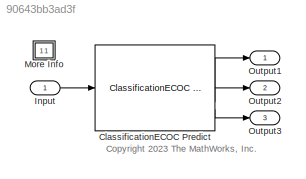
MODEL slx_90643bb3ad3f
KIND model
CONFIG AbsTol = auto
CONFIG EnableMultiTasking = off
CONFIG FixedStep = 1
CONFIG MaxStep = auto
CONFIG MinStep = auto
CONFIG PreLoadFcn = if ~exist("ecocMdl","var")\n\nload humanactivity\nX = feat;\nY = actid;\n\nrng("default") % For reproducibility of the partition\ncv = cvpartition(Y,"Holdout",0.20);\ntrainingInds = training(cv);\ntestInds = test(cv);\nXTrain = X(trainingInds,:);\nYTrain = Y(trainingInds);\nXTest = X(testInds,:);\nYTest = Y(testInds);\n\necocMdl = fitcecoc(XTrain,YTrain);\n\n[nTest,p] = size(XTest);\nactivityInput.time = (0:(nTest-...<+92ch>
CONFIG RelTol = 1e-3
CONFIG SampleTimeConstraint = Unconstrained
CONFIG SolverName = FixedStepDiscrete
CONFIG StartTime = 0.0
CONFIG StopTime = activityInput.time(end)
BLOCK [Reference] ClassificationECOC Predict  REF=statsLibrary/Classification/ClassificationECOC Predict
  SourceBlock = statsLibrary/Classification/ClassificationECOC Predict
  SourceType = ClassificationECOC Predict
BLOCK [Inport] Input
BLOCK [SubSystem] More Info
  OpenFcn = showExample('stats/PredictClassLabelsUsingClassificationECOCPredictBlockExample')
BLOCK [Outport] Output1
BLOCK [Outport] Output2
  Port = 2
BLOCK [Outport] Output3
  Port = 3
ANNOTATION (root): <copyright redacted>
LINE ClassificationECOC Predict:1 -> Output1:1
LINE ClassificationECOC Predict:2 -> Output2:1
LINE ClassificationECOC Predict:3 -> Output3:1
LINE Input:1 -> ClassificationECOC Predict:1
